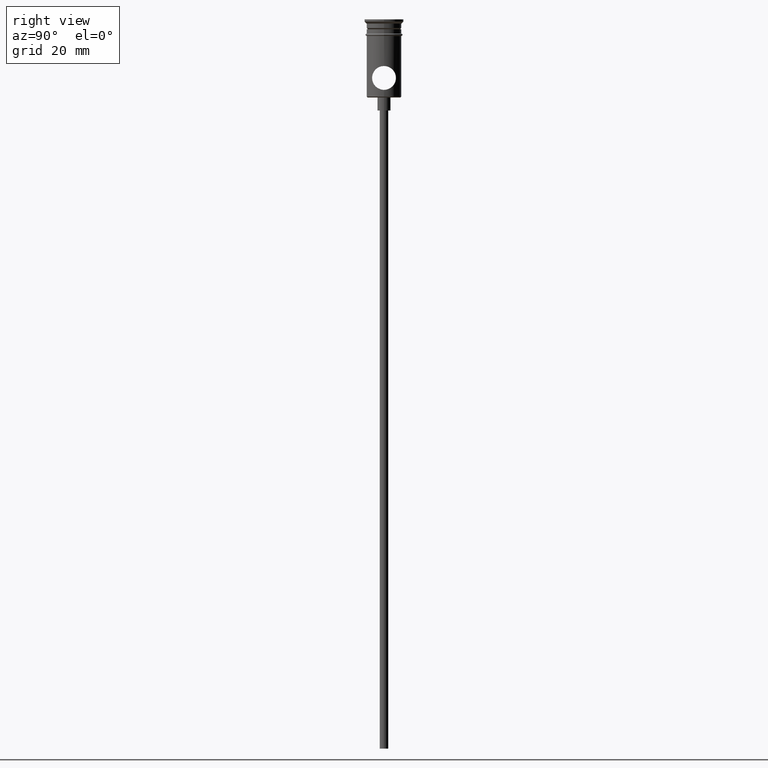
[diagram: clean part render]
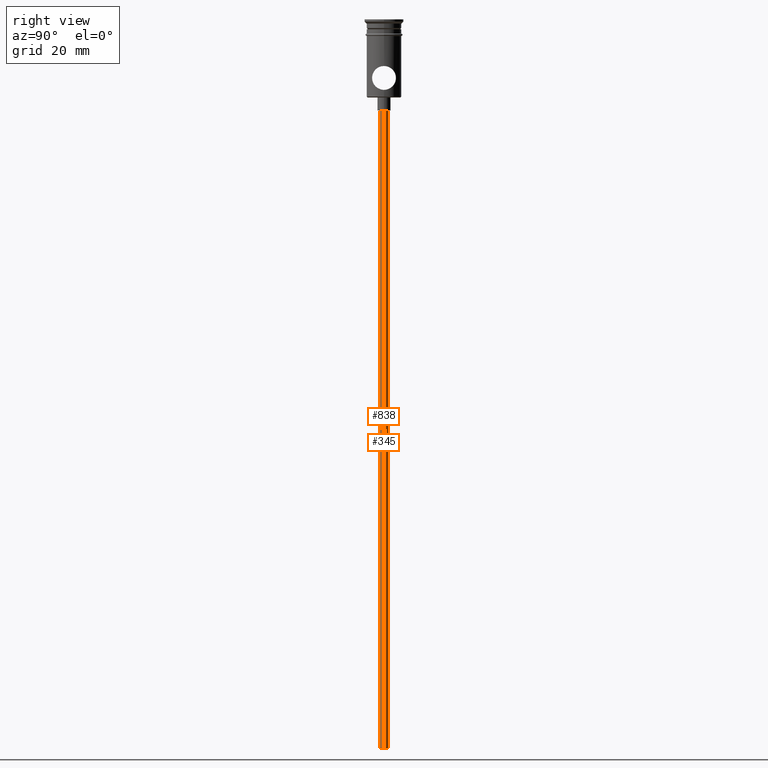
[diagram: same view with one multi-face feature highlighted, each face labeled with its STEP entity id]
A machine part, right view. The highlighted faces form ONE feature: a constant-radius fillet chain: 2 tangent blend faces with common blend radius 1 mm. The faces share edges in the B-rep.
Their STEP definitions:
[1] entity #838 (Cylinder):
#16 = VERTEX_POINT ( 'NONE', #415 ) ;
#59 = VERTEX_POINT ( 'NONE', #245 ) ;
#68 = FACE_OUTER_BOUND ( 'NONE', #918, .T. ) ;
#78 = AXIS2_PLACEMENT_3D ( 'NONE', #1208, #346, #1416 ) ;
#135 = DIRECTION ( 'NONE',  ( -1.000000000000000000, 0.000000000000000000, 0.000000000000000000 ) ) ;
#186 = CARTESIAN_POINT ( 'NONE',  ( 0.000000000000000000, 0.000000000000000000, -167.9999999999999716 ) ) ;
#234 = DIRECTION ( 'NONE',  ( -0.000000000000000000, -0.000000000000000000, 1.000000000000000000 ) ) ;
#245 = CARTESIAN_POINT ( 'NONE',  ( 0.9999999999999997780, 0.000000000000000000, -20.99999999999999645 ) ) ;
#256 = EDGE_CURVE ( 'NONE', #59, #1300, #508, .T. ) ;
#257 = LINE ( 'NONE', #558, #714 ) ;
#268 = DIRECTION ( 'NONE',  ( -0.000000000000000000, -0.000000000000000000, 1.000000000000000000 ) ) ;
#336 = DIRECTION ( 'NONE',  ( 0.000000000000000000, 0.000000000000000000, -1.000000000000000000 ) ) ;
#346 = DIRECTION ( 'NONE',  ( 0.000000000000000000, 0.000000000000000000, -1.000000000000000000 ) ) ;
#385 = LINE ( 'NONE', #923, #1104 ) ;
#405 = CARTESIAN_POINT ( 'NONE',  ( -0.9999999999999997780, 1.224646799147352961E-16, -20.99999999999999645 ) ) ;
#415 = CARTESIAN_POINT ( 'NONE',  ( 0.9999999999999997780, 0.000000000000000000, -167.9999999999999716 ) ) ;
#432 = ORIENTED_EDGE ( 'NONE', *, *, #1198, .F. ) ;
#508 = CIRCLE ( 'NONE', #1265, 0.9999999999999997780 ) ;
#558 = CARTESIAN_POINT ( 'NONE',  ( -0.9999999999999997780, 1.224646799147352961E-16, -167.9999999999999716 ) ) ;
#595 = CIRCLE ( 'NONE', #78, 0.9999999999999997780 ) ;
#599 = CYLINDRICAL_SURFACE ( 'NONE', #880, 0.9999999999999997780 ) ;
#697 = CARTESIAN_POINT ( 'NONE',  ( -0.9999999999999997780, 1.224646799147352961E-16, -167.9999999999999716 ) ) ;
#714 = VECTOR ( 'NONE', #234, 1000.000000000000000 ) ;
#761 = EDGE_CURVE ( 'NONE', #16, #935, #595, .T. ) ;
#830 = EDGE_CURVE ( 'NONE', #16, #59, #385, .T. ) ;
#838 = ADVANCED_FACE ( 'NONE', ( #68 ), #599, .T. ) ;
#873 = ORIENTED_EDGE ( 'NONE', *, *, #761, .F. ) ;
#880 = AXIS2_PLACEMENT_3D ( 'NONE', #186, #1374, #1263 ) ;
#918 = EDGE_LOOP ( 'NONE', ( #432, #873, #967, #1035 ) ) ;
#923 = CARTESIAN_POINT ( 'NONE',  ( 0.9999999999999997780, 0.000000000000000000, -167.9999999999999716 ) ) ;
#935 = VERTEX_POINT ( 'NONE', #697 ) ;
#967 = ORIENTED_EDGE ( 'NONE', *, *, #830, .T. ) ;
#1035 = ORIENTED_EDGE ( 'NONE', *, *, #256, .T. ) ;
#1102 = CARTESIAN_POINT ( 'NONE',  ( 0.000000000000000000, 0.000000000000000000, -20.99999999999999645 ) ) ;
#1104 = VECTOR ( 'NONE', #268, 1000.000000000000000 ) ;
#1198 = EDGE_CURVE ( 'NONE', #935, #1300, #257, .T. ) ;
#1208 = CARTESIAN_POINT ( 'NONE',  ( 0.000000000000000000, 0.000000000000000000, -167.9999999999999716 ) ) ;
#1263 = DIRECTION ( 'NONE',  ( 1.000000000000000000, 0.000000000000000000, 0.000000000000000000 ) ) ;
#1265 = AXIS2_PLACEMENT_3D ( 'NONE', #1102, #336, #135 ) ;
#1300 = VERTEX_POINT ( 'NONE', #405 ) ;
#1374 = DIRECTION ( 'NONE',  ( -0.000000000000000000, -0.000000000000000000, 1.000000000000000000 ) ) ;
#1416 = DIRECTION ( 'NONE',  ( -1.000000000000000000, 0.000000000000000000, 0.000000000000000000 ) ) ;
[2] entity #345 (Cylinder):
#16 = VERTEX_POINT ( 'NONE', #415 ) ;
#59 = VERTEX_POINT ( 'NONE', #245 ) ;
#66 = CIRCLE ( 'NONE', #1066, 0.9999999999999997780 ) ;
#100 = DIRECTION ( 'NONE',  ( -1.000000000000000000, 0.000000000000000000, 0.000000000000000000 ) ) ;
#112 = ORIENTED_EDGE ( 'NONE', *, *, #830, .F. ) ;
#116 = CYLINDRICAL_SURFACE ( 'NONE', #911, 0.9999999999999997780 ) ;
#234 = DIRECTION ( 'NONE',  ( -0.000000000000000000, -0.000000000000000000, 1.000000000000000000 ) ) ;
#245 = CARTESIAN_POINT ( 'NONE',  ( 0.9999999999999997780, 0.000000000000000000, -20.99999999999999645 ) ) ;
#257 = LINE ( 'NONE', #558, #714 ) ;
#268 = DIRECTION ( 'NONE',  ( -0.000000000000000000, -0.000000000000000000, 1.000000000000000000 ) ) ;
#286 = EDGE_CURVE ( 'NONE', #1300, #59, #1175, .T. ) ;
#345 = ADVANCED_FACE ( 'NONE', ( #1094 ), #116, .T. ) ;
#381 = ORIENTED_EDGE ( 'NONE', *, *, #1001, .F. ) ;
#385 = LINE ( 'NONE', #923, #1104 ) ;
#405 = CARTESIAN_POINT ( 'NONE',  ( -0.9999999999999997780, 1.224646799147352961E-16, -20.99999999999999645 ) ) ;
#415 = CARTESIAN_POINT ( 'NONE',  ( 0.9999999999999997780, 0.000000000000000000, -167.9999999999999716 ) ) ;
#501 = DIRECTION ( 'NONE',  ( 1.000000000000000000, 0.000000000000000000, 0.000000000000000000 ) ) ;
#548 = CARTESIAN_POINT ( 'NONE',  ( 0.000000000000000000, 0.000000000000000000, -167.9999999999999716 ) ) ;
#558 = CARTESIAN_POINT ( 'NONE',  ( -0.9999999999999997780, 1.224646799147352961E-16, -167.9999999999999716 ) ) ;
#639 = CARTESIAN_POINT ( 'NONE',  ( 0.000000000000000000, 0.000000000000000000, -167.9999999999999716 ) ) ;
#687 = ORIENTED_EDGE ( 'NONE', *, *, #1198, .T. ) ;
#697 = CARTESIAN_POINT ( 'NONE',  ( -0.9999999999999997780, 1.224646799147352961E-16, -167.9999999999999716 ) ) ;
#713 = EDGE_LOOP ( 'NONE', ( #381, #687, #795, #112 ) ) ;
#714 = VECTOR ( 'NONE', #234, 1000.000000000000000 ) ;
#795 = ORIENTED_EDGE ( 'NONE', *, *, #286, .T. ) ;
#830 = EDGE_CURVE ( 'NONE', #16, #59, #385, .T. ) ;
#887 = CARTESIAN_POINT ( 'NONE',  ( 0.000000000000000000, 0.000000000000000000, -20.99999999999999645 ) ) ;
#911 = AXIS2_PLACEMENT_3D ( 'NONE', #548, #1255, #501 ) ;
#923 = CARTESIAN_POINT ( 'NONE',  ( 0.9999999999999997780, 0.000000000000000000, -167.9999999999999716 ) ) ;
#935 = VERTEX_POINT ( 'NONE', #697 ) ;
#937 = AXIS2_PLACEMENT_3D ( 'NONE', #887, #1338, #1226 ) ;
#1001 = EDGE_CURVE ( 'NONE', #935, #16, #66, .T. ) ;
#1066 = AXIS2_PLACEMENT_3D ( 'NONE', #639, #1286, #100 ) ;
#1094 = FACE_OUTER_BOUND ( 'NONE', #713, .T. ) ;
#1104 = VECTOR ( 'NONE', #268, 1000.000000000000000 ) ;
#1175 = CIRCLE ( 'NONE', #937, 0.9999999999999997780 ) ;
#1198 = EDGE_CURVE ( 'NONE', #935, #1300, #257, .T. ) ;
#1226 = DIRECTION ( 'NONE',  ( -1.000000000000000000, 0.000000000000000000, 0.000000000000000000 ) ) ;
#1255 = DIRECTION ( 'NONE',  ( -0.000000000000000000, -0.000000000000000000, 1.000000000000000000 ) ) ;
#1286 = DIRECTION ( 'NONE',  ( 0.000000000000000000, 0.000000000000000000, -1.000000000000000000 ) ) ;
#1300 = VERTEX_POINT ( 'NONE', #405 ) ;
#1338 = DIRECTION ( 'NONE',  ( 0.000000000000000000, 0.000000000000000000, -1.000000000000000000 ) ) ;